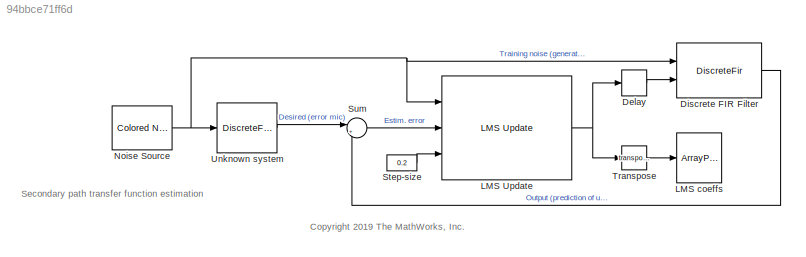
MODEL slx_94bbce71ff6d
KIND model
CONFIG AbsTol = auto
CONFIG EnableMultiTasking = off
CONFIG FixedStep = 0.00025
CONFIG MaxStep = auto
CONFIG MinStep = auto
CONFIG RelTol = 1e-3
CONFIG SampleTimeConstraint = Unconstrained
CONFIG SolverName = FixedStepDiscrete
CONFIG StartTime = 0.0
CONFIG StopTime = 3
BLOCK [Delay] Delay
  DelayLength = 1
  InputPortMap = u0
  Ports = [1, 1]
BLOCK [DiscreteFir] Discrete FIR Filter
  CoefSource = Input port
  InputPortMap = u0,u1
  OutputPortMap = o0
  Ports = [2, 1]
BLOCK [Reference] LMS Update  REF=dspadpt3/LMS Update
  Ports = [3, 1]
  SourceBlock = dspadpt3/LMS Update
  SourceProductBaseCode = DS
  SourceType = dsp.simulink.LMSUpdate
BLOCK [ArrayPlot] LMS coeffs
  AxesScaling = Manual
  DefaultConfigurationName = dsp.scopes.ArrayPlotBlockSpecification
  GraphicalSettings = {'Style':{'AxesColor':[0,0,0],'LabelsColor':[0.686274509803922,0.686274509803922,0.686274509803922]}}
  Ports = [1]
  ScopeFrameLocation = window
  Visible = on
  WasSavedAsWebScope = on
  WindowPosition = [233.000000,288.000000,800.000000,500.000000,]
  YLimits = [-0.624999,0.624999]
BLOCK [Reference] Noise Source  REF=dspsrcs4/Colored Noise
  Ports = [0, 1]
  SourceBlock = dspsrcs4/Colored Noise
  SourceProductBaseCode = DS
  SourceType = dsp.simulink.ColoredNoise
BLOCK [Constant] Step-size
  Value = 0.2
BLOCK [Sum] Sum
  Inputs = |+-
  Ports = [2, 1]
BLOCK [Math] Transpose
  Operator = transpose
  Ports = [1, 1]
  SignedPower = on
BLOCK [DiscreteFir] Unknown system
  Coefficients = [0 0 -.5 .5 -.3 .2 -.1 .5 -.5]
  InputPortMap = u0
  InputProcessing = Columns as channels (frame based)
  OutputPortMap = o0
  Ports = [1, 1]
ANNOTATION (root): <copyright redacted>
ANNOTATION (root): Secondary path transfer function estimation
LINE Delay:1 -> Discrete FIR Filter:2
LINE Discrete FIR Filter:1 -> Sum:2
NET LMS Update:1 -> Delay:1, Transpose:1
NET Noise Source:1 -> Discrete FIR Filter:1, LMS Update:1, Unknown system:1
LINE Step-size:1 -> LMS Update:3
LINE Sum:1 -> LMS Update:2
LINE Transpose:1 -> LMS coeffs:1
LINE Unknown system:1 -> Sum:1
note: NET lines group one-source signal fan-out (src -> all destinations, sorted); 1:1 wires keep LINE
